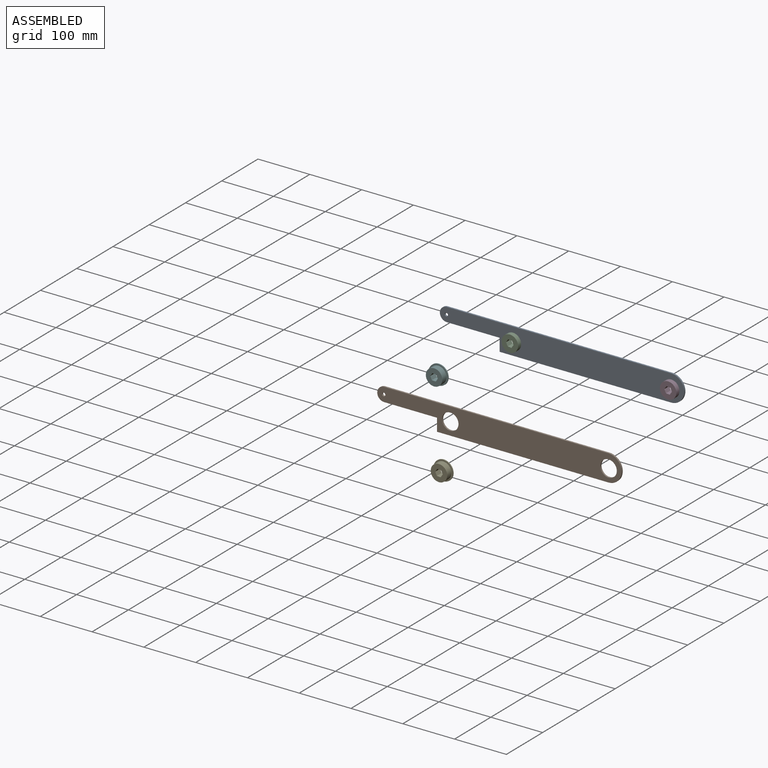
[diagram: assembled view]
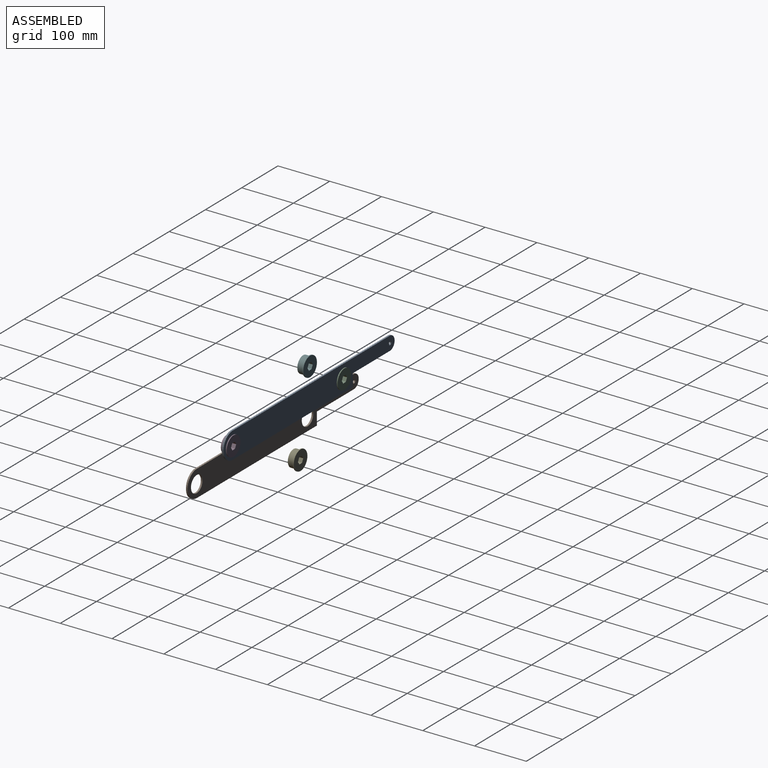
[diagram: assembled view, second angle]
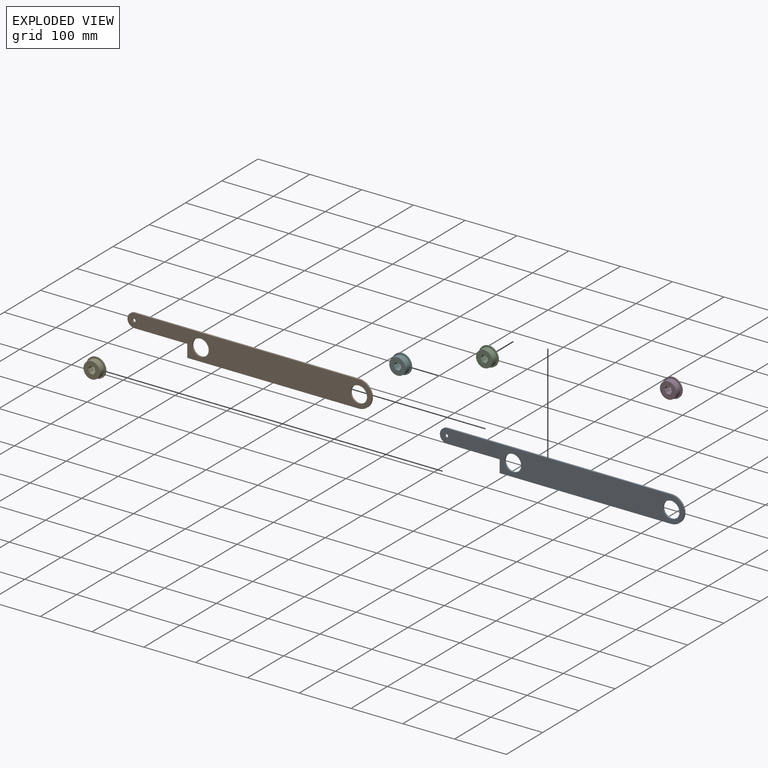
[diagram: exploded view]
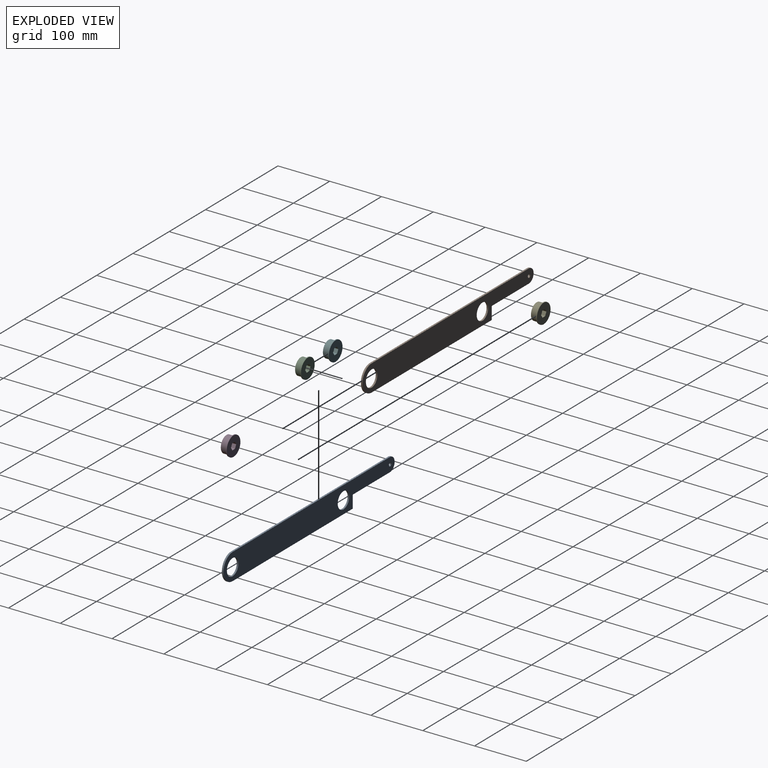
[diagram: exploded view, second angle]
ASSEMBLY  parts=6 mates=2
PART A: 11 faces, bbox 471.9x3.2x51 mm
  f0: plane 433.18x3.18mm, normal (0,0,1), area 1375.3mm2, adj f1,f5,f6,f7
  f1: cylinder r=13.25mm len=26.51mm, axis (0,1,0), area 132.2mm2, adj f0,f2,f6,f7
  f2: plane 102.22x3.18mm, normal (0,0,-1), area 324.5mm2, adj f1,f3,f6,f7
  f3: plane 24.47x3.18mm, normal (-1,0,0), area 77.7mm2, adj f2,f4,f6,f7
  f4: plane 330.97x3.18mm, normal (0,0,-1), area 1050.8mm2, adj f3,f5,f6,f7
  f5: cylinder r=25.49mm len=50.98mm, axis (0,1,0), area 254.2mm2, adj f0,f4,f6,f7
  f6: plane 471.92x50.98mm, normal (0,-1,0), area 19262.5mm2, adj f0,f1,f2,f3,f4,f5,f8,f9
  f7: plane 471.92x50.98mm, normal (0,1,0), area 19262.5mm2, adj f0,f1,f2,f3,f4,f5,f8,f9
  f8: cylinder r=15.88mm len=31.75mm, axis (0,1,0), area 316.7mm2, adj f6,f7
  f9: cylinder r=15.88mm len=31.75mm, axis (0,1,0), area 316.7mm2, adj f6,f7
  f10: cylinder r=3.17mm len=6.35mm, axis (0,1,0), area 63.3mm2, adj f6,f7
PART B: same geometry as A
PART C: 11 faces, bbox 37.6x13.6x37.6 mm
  f0: plane 13.62x6.54mm, normal (-0.9,0,-0.44), area 99.2mm2, adj f1,f5,f8,f10
  f1: plane 13.62x6.05mm, normal (-0.83,0,0.56), area 99.2mm2, adj f0,f2,f8,f10
  f2: plane 13.62x7.27mm, normal (0.07,0,1), area 99.2mm2, adj f1,f3,f8,f10
  f3: plane 13.62x6.54mm, normal (0.9,0,0.44), area 99.2mm2, adj f2,f4,f8,f10
  f4: plane 13.62x6.05mm, normal (0.83,0,-0.56), area 99.2mm2, adj f3,f5,f8,f10
  f5: plane 13.62x7.27mm, normal (-0.07,0,-1), area 99.2mm2, adj f0,f4,f8,f10
  f6: cylinder r=18.81mm len=37.62mm, axis (0,1,0), area 217.6mm2, adj f7,f8
  f7: plane 37.62x37.62mm, normal (0,-1,0), area 319.9mm2, adj f6,f9
  f8: plane 37.62x37.62mm, normal (0,1,0), area 973.8mm2, adj f0,f1,f2,f3,f4,f5,f6
  f9: cylinder r=15.88mm len=31.75mm, axis (0,1,0), area 1174.9mm2, adj f7,f10
  f10: plane 31.75x31.75mm, normal (0,-1,0), area 654mm2, adj f0,f1,f2,f3,f4,f5,f9
PART D: same geometry as C
PART E: same geometry as C
PART F: same geometry as C
PLACE A t=(7.96,43.76,45.75)mm
PLACE B t=(-40.61,-59.63,-67.28)mm
PLACE C t=(-75.87,44.69,45.75)mm
PLACE D t=(229.81,44.69,45.75)mm
PLACE E t=(-127.91,-76.4,-147.88)mm
PLACE F t=(-142.9,-68.51,12.16)mm
MATE revolute D.f6 <-> A.f9  axis (0,-1,0) through (229.81,43.76,45.75)mm
MATE revolute C.f6 <-> A.f8  axis (0,-1,0) through (-75.87,43.76,45.75)mm
